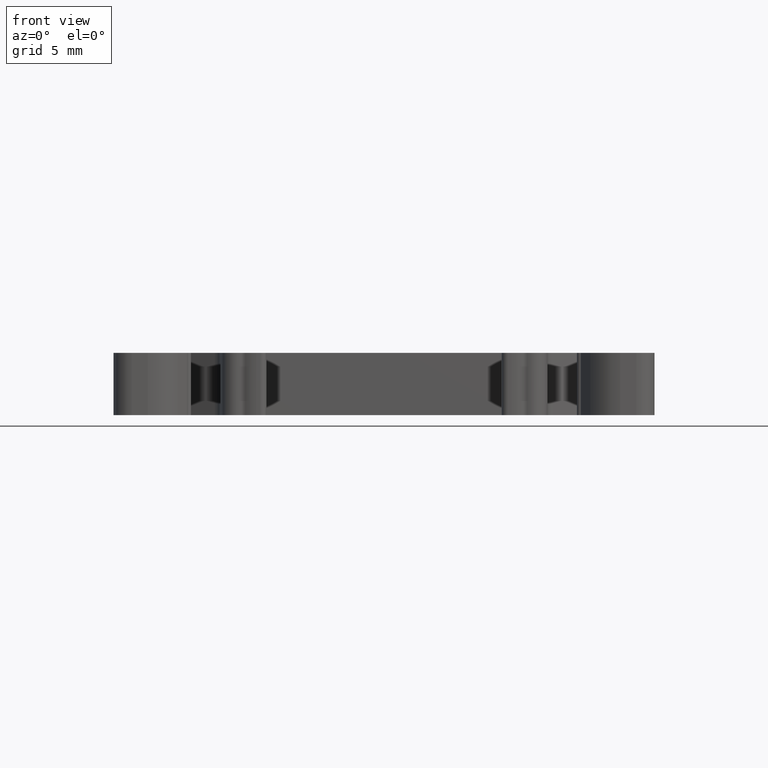
[diagram: clean part render]
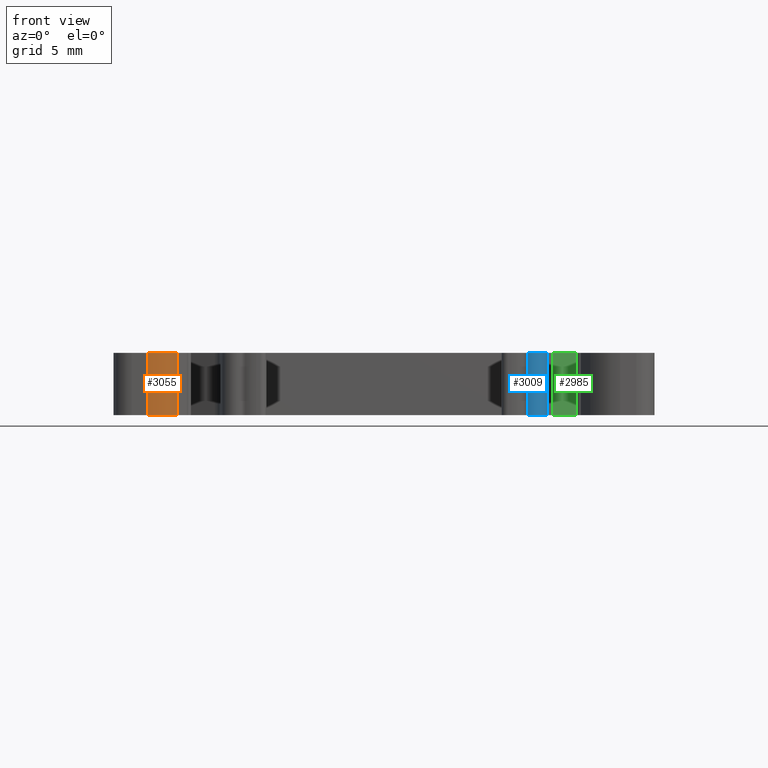
[diagram: same view with three faces highlighted in distinct colors, each labeled with its STEP entity id]
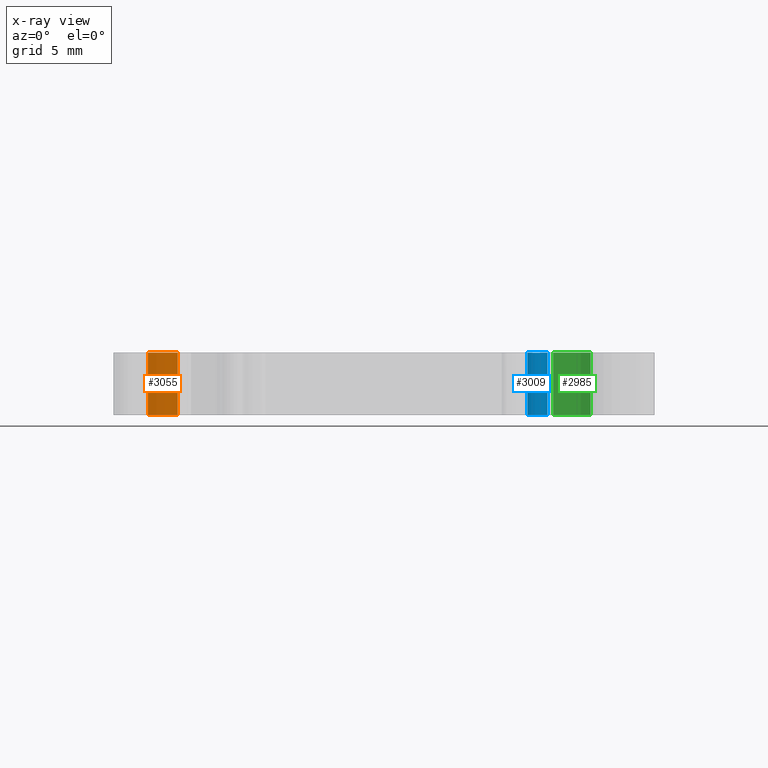
[diagram: x-ray of the same camera — body ghosted, the three highlighted faces saturated]
A machine part, front view with three faces highlighted in distinct colors.
The next image is the same camera in x-ray (body ghosted, the three faces saturated) — at least one of them is partly hidden behind the body in this view.
Their STEP definitions:

[orange] entity #3055 — the highlighted cylindrical surface (partial cylindrical patch) has radius 3 mm, axis along (0, 0, -1).
#165 = ORIENTED_EDGE ( 'NONE', *, *, #3004, .T. ) ;
#191 = ORIENTED_EDGE ( 'NONE', *, *, #3034, .T. ) ;
#209 = ORIENTED_EDGE ( 'NONE', *, *, #3001, .T. ) ;
#224 = ORIENTED_EDGE ( 'NONE', *, *, #3596, .T. ) ;
#753 = EDGE_LOOP ( 'NONE', ( #165, #209, #191, #224 ) ) ;
#1126 = VERTEX_POINT ( 'NONE', #5899 ) ;
#1183 = VERTEX_POINT ( 'NONE', #5945 ) ;
#1266 = VERTEX_POINT ( 'NONE', #6052 ) ;
#1283 = VERTEX_POINT ( 'NONE', #6092 ) ;
#3001 = EDGE_CURVE ( 'NONE', #1266, #1283, #7187, .T. ) ;
#3004 = EDGE_CURVE ( 'NONE', #1126, #1266, #8112, .T. ) ;
#3034 = EDGE_CURVE ( 'NONE', #1283, #1183, #8117, .T. ) ;
#3055 = ADVANCED_FACE ( 'NONE', ( #7682 ), #7665, .T. ) ;
#3596 = EDGE_CURVE ( 'NONE', #1183, #1126, #4141, .T. ) ;
#4141 = LINE ( 'NONE', #4183, #7117 ) ;
#4183 = CARTESIAN_POINT ( 'NONE',  ( 1443.279626254703100, 918.7518830052536000, 9.037842237415203400 ) ) ;
#4191 = DIRECTION ( 'NONE',  ( -0.0000000000000000000, -0.0000000000000000000, 1.000000000000000000 ) ) ;
#5899 = CARTESIAN_POINT ( 'NONE',  ( 1443.279626254702600, 918.7518830052537200, -42.94999999999999600 ) ) ;
#5945 = CARTESIAN_POINT ( 'NONE',  ( 1443.279626254702600, 918.7518830052537200, -48.05000000000000400 ) ) ;
#6052 = CARTESIAN_POINT ( 'NONE',  ( 1440.822181477863300, 917.4726194420810500, -42.94999999999999600 ) ) ;
#6092 = CARTESIAN_POINT ( 'NONE',  ( 1440.822181477863300, 917.4726194420810500, -48.05000000000000400 ) ) ;
#7117 = VECTOR ( 'NONE', #4191, 1000.000000000000000 ) ;
#7187 = LINE ( 'NONE', #7199, #7712 ) ;
#7199 = CARTESIAN_POINT ( 'NONE',  ( 1440.822181477862800, 917.4726194420809400, 9.037842237415203400 ) ) ;
#7203 = DIRECTION ( 'NONE',  ( 0.0000000000000000000, 0.0000000000000000000, -1.000000000000000000 ) ) ;
#7279 = DIRECTION ( 'NONE',  ( -1.000000000000000000, 0.0000000000000000000, 0.0000000000000000000 ) ) ;
#7315 = CARTESIAN_POINT ( 'NONE',  ( 1440.822175112768000, 920.4726194420740100, -42.94999999999999600 ) ) ;
#7347 = DIRECTION ( 'NONE',  ( 0.0000000000000000000, 0.0000000000000000000, -1.000000000000000000 ) ) ;
#7474 = DIRECTION ( 'NONE',  ( -1.000000000000000000, 3.700743415417322000E-014, 0.0000000000000000000 ) ) ;
#7515 = CARTESIAN_POINT ( 'NONE',  ( 1440.822175112768000, 920.4726194420740100, -48.05000000000000400 ) ) ;
#7537 = DIRECTION ( 'NONE',  ( -0.0000000000000000000, -0.0000000000000000000, 1.000000000000000000 ) ) ;
#7643 = DIRECTION ( 'NONE',  ( -1.000000000000000000, 0.0000000000000000000, 0.0000000000000000000 ) ) ;
#7661 = DIRECTION ( 'NONE',  ( 0.0000000000000000000, 0.0000000000000000000, -1.000000000000000000 ) ) ;
#7665 = CYLINDRICAL_SURFACE ( 'NONE', #8324, 2.999999999999891600 ) ;
#7681 = CARTESIAN_POINT ( 'NONE',  ( 1440.822175112768000, 920.4726194420740100, 9.037842237415203400 ) ) ;
#7682 = FACE_OUTER_BOUND ( 'NONE', #753, .T. ) ;
#7712 = VECTOR ( 'NONE', #7203, 1000.000000000000000 ) ;
#8112 = CIRCLE ( 'NONE', #8210, 2.999999999999891600 ) ;
#8117 = CIRCLE ( 'NONE', #8122, 2.999999999999891600 ) ;
#8122 = AXIS2_PLACEMENT_3D ( 'NONE', #7515, #7537, #7474 ) ;
#8210 = AXIS2_PLACEMENT_3D ( 'NONE', #7315, #7347, #7279 ) ;
#8324 = AXIS2_PLACEMENT_3D ( 'NONE', #7681, #7661, #7643 ) ;

[blue] entity #3009 — the highlighted cylindrical surface (edge-blend (fillet) strip) has radius 1.25 mm, axis along (0, 0, -1).
#134 = ORIENTED_EDGE ( 'NONE', *, *, #3028, .T. ) ;
#144 = ORIENTED_EDGE ( 'NONE', *, *, #3656, .T. ) ;
#266 = ORIENTED_EDGE ( 'NONE', *, *, #3640, .T. ) ;
#285 = ORIENTED_EDGE ( 'NONE', *, *, #3068, .T. ) ;
#724 = EDGE_LOOP ( 'NONE', ( #134, #144, #285, #266 ) ) ;
#1169 = VERTEX_POINT ( 'NONE', #5924 ) ;
#1178 = VERTEX_POINT ( 'NONE', #5962 ) ;
#1189 = VERTEX_POINT ( 'NONE', #5974 ) ;
#1206 = VERTEX_POINT ( 'NONE', #6025 ) ;
#3009 = ADVANCED_FACE ( 'NONE', ( #7340 ), #7328, .T. ) ;
#3028 = EDGE_CURVE ( 'NONE', #1169, #1189, #8144, .T. ) ;
#3068 = EDGE_CURVE ( 'NONE', #1206, #1178, #8279, .T. ) ;
#3640 = EDGE_CURVE ( 'NONE', #1178, #1169, #4324, .T. ) ;
#3656 = EDGE_CURVE ( 'NONE', #1189, #1206, #4366, .T. ) ;
#4323 = DIRECTION ( 'NONE',  ( -0.0000000000000000000, -0.0000000000000000000, 1.000000000000000000 ) ) ;
#4324 = LINE ( 'NONE', #4325, #7258 ) ;
#4325 = CARTESIAN_POINT ( 'NONE',  ( 1473.140735790600300, 921.6521540635160400, 9.037842237415203400 ) ) ;
#4356 = CARTESIAN_POINT ( 'NONE',  ( 1471.920191232293100, 919.5271785185785800, 9.037842237415203400 ) ) ;
#4358 = DIRECTION ( 'NONE',  ( 0.0000000000000000000, 0.0000000000000000000, -1.000000000000000000 ) ) ;
#4366 = LINE ( 'NONE', #4356, #7268 ) ;
#5924 = CARTESIAN_POINT ( 'NONE',  ( 1473.140735790600500, 921.6521540635162600, -42.94999999999999600 ) ) ;
#5962 = CARTESIAN_POINT ( 'NONE',  ( 1473.140735790600500, 921.6521540635162600, -48.05000000000000400 ) ) ;
#5974 = CARTESIAN_POINT ( 'NONE',  ( 1471.920191232293500, 919.5271785185783500, -42.94999999999999600 ) ) ;
#6025 = CARTESIAN_POINT ( 'NONE',  ( 1471.920191232293500, 919.5271785185783500, -48.05000000000000400 ) ) ;
#7258 = VECTOR ( 'NONE', #4323, 1000.000000000000000 ) ;
#7268 = VECTOR ( 'NONE', #4358, 1000.000000000000000 ) ;
#7271 = DIRECTION ( 'NONE',  ( 0.0000000000000000000, 0.0000000000000000000, -1.000000000000000000 ) ) ;
#7308 = CARTESIAN_POINT ( 'NONE',  ( 1472.315967280087800, 920.7128687479349800, 9.037842237415203400 ) ) ;
#7313 = DIRECTION ( 'NONE',  ( -1.000000000000000000, 0.0000000000000000000, 0.0000000000000000000 ) ) ;
#7328 = CYLINDRICAL_SURFACE ( 'NONE', #8156, 1.249999999999751300 ) ;
#7340 = FACE_OUTER_BOUND ( 'NONE', #724, .T. ) ;
#7534 = DIRECTION ( 'NONE',  ( 0.0000000000000000000, 0.0000000000000000000, -1.000000000000000000 ) ) ;
#7545 = DIRECTION ( 'NONE',  ( -1.000000000000000000, 0.0000000000000000000, 0.0000000000000000000 ) ) ;
#7549 = CARTESIAN_POINT ( 'NONE',  ( 1472.315967280087800, 920.7128687479349800, -42.94999999999999600 ) ) ;
#7709 = DIRECTION ( 'NONE',  ( -0.0000000000000000000, -0.0000000000000000000, 1.000000000000000000 ) ) ;
#7743 = CARTESIAN_POINT ( 'NONE',  ( 1472.315967280087800, 920.7128687479349800, -48.05000000000000400 ) ) ;
#7753 = DIRECTION ( 'NONE',  ( -1.000000000000000000, -8.881784197003019400E-014, 0.0000000000000000000 ) ) ;
#8144 = CIRCLE ( 'NONE', #8185, 1.249999999999751300 ) ;
#8156 = AXIS2_PLACEMENT_3D ( 'NONE', #7308, #7271, #7313 ) ;
#8185 = AXIS2_PLACEMENT_3D ( 'NONE', #7549, #7534, #7545 ) ;
#8279 = CIRCLE ( 'NONE', #8295, 1.249999999999751300 ) ;
#8295 = AXIS2_PLACEMENT_3D ( 'NONE', #7743, #7709, #7753 ) ;

[green] entity #2985 — the highlighted planar face has unit normal (0.5, -0.866, 0).
#199 = ORIENTED_EDGE ( 'NONE', *, *, #3099, .T. ) ;
#228 = ORIENTED_EDGE ( 'NONE', *, *, #3689, .T. ) ;
#233 = ORIENTED_EDGE ( 'NONE', *, *, #3686, .T. ) ;
#294 = ORIENTED_EDGE ( 'NONE', *, *, #3107, .T. ) ;
#747 = EDGE_LOOP ( 'NONE', ( #294, #228, #199, #233 ) ) ;
#1157 = VERTEX_POINT ( 'NONE', #5967 ) ;
#1172 = VERTEX_POINT ( 'NONE', #5941 ) ;
#1194 = VERTEX_POINT ( 'NONE', #5916 ) ;
#1203 = VERTEX_POINT ( 'NONE', #6024 ) ;
#2985 = ADVANCED_FACE ( 'NONE', ( #7144 ), #7082, .T. ) ;
#3099 = EDGE_CURVE ( 'NONE', #1203, #1172, #7878, .T. ) ;
#3107 = EDGE_CURVE ( 'NONE', #1194, #1157, #7906, .T. ) ;
#3686 = EDGE_CURVE ( 'NONE', #1172, #1194, #4446, .T. ) ;
#3689 = EDGE_CURVE ( 'NONE', #1157, #1203, #4447, .T. ) ;
#4429 = CARTESIAN_POINT ( 'NONE',  ( 1474.032681080794600, 926.0374192574470300, 9.037842237415203400 ) ) ;
#4446 = LINE ( 'NONE', #4458, #7367 ) ;
#4447 = LINE ( 'NONE', #4429, #7325 ) ;
#4458 = CARTESIAN_POINT ( 'NONE',  ( 1477.098208867464800, 927.8073021615640500, 9.037842237415203400 ) ) ;
#4464 = DIRECTION ( 'NONE',  ( -0.0000000000000000000, 0.0000000000000000000, 1.000000000000000000 ) ) ;
#4479 = DIRECTION ( 'NONE',  ( 0.0000000000000000000, -0.0000000000000000000, -1.000000000000000000 ) ) ;
#5916 = CARTESIAN_POINT ( 'NONE',  ( 1477.098208867464800, 927.8073021615640500, -42.94999999999999600 ) ) ;
#5941 = CARTESIAN_POINT ( 'NONE',  ( 1477.098208867464800, 927.8073021615640500, -48.05000000000000400 ) ) ;
#5967 = CARTESIAN_POINT ( 'NONE',  ( 1474.032681080794600, 926.0374192574470300, -42.95000000000000300 ) ) ;
#6024 = CARTESIAN_POINT ( 'NONE',  ( 1474.032681080794600, 926.0374192574470300, -48.05000000000000400 ) ) ;
#7082 = PLANE ( 'NONE',  #8082 ) ;
#7144 = FACE_OUTER_BOUND ( 'NONE', #747, .T. ) ;
#7154 = CARTESIAN_POINT ( 'NONE',  ( 1477.098208867464600, 927.8073021615639400, 9.037842237415203400 ) ) ;
#7156 = DIRECTION ( 'NONE',  ( 0.4999999176375570800, -0.8660254513364120700, 0.0000000000000000000 ) ) ;
#7158 = DIRECTION ( 'NONE',  ( 0.8660254513364119600, 0.4999999176375570200, 0.0000000000000000000 ) ) ;
#7325 = VECTOR ( 'NONE', #4479, 1000.000000000000000 ) ;
#7367 = VECTOR ( 'NONE', #4464, 1000.000000000000000 ) ;
#7878 = LINE ( 'NONE', #7954, #8329 ) ;
#7901 = DIRECTION ( 'NONE',  ( 0.8660254513364119600, 0.4999999176375570200, 0.0000000000000000000 ) ) ;
#7906 = LINE ( 'NONE', #7999, #8410 ) ;
#7954 = CARTESIAN_POINT ( 'NONE',  ( 1477.098208867464600, 927.8073021615639400, -48.05000000000000400 ) ) ;
#7971 = DIRECTION ( 'NONE',  ( -0.8660254513364119600, -0.4999999176375570200, -0.0000000000000000000 ) ) ;
#7999 = CARTESIAN_POINT ( 'NONE',  ( 1477.098208867464600, 927.8073021615639400, -42.94999999999999600 ) ) ;
#8082 = AXIS2_PLACEMENT_3D ( 'NONE', #7154, #7156, #7158 ) ;
#8329 = VECTOR ( 'NONE', #7901, 1000.000000000000100 ) ;
#8410 = VECTOR ( 'NONE', #7971, 1000.000000000000100 ) ;